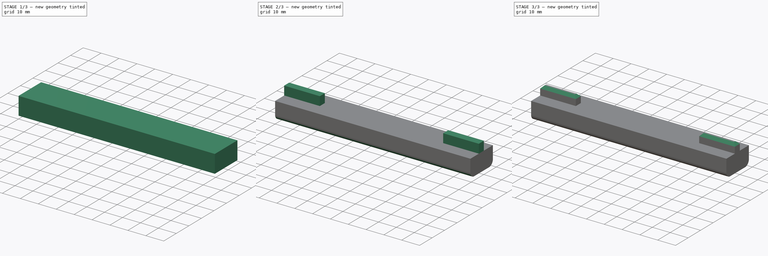
[diagram: build sequence overview — one tinted view per stage of 3, left to right]
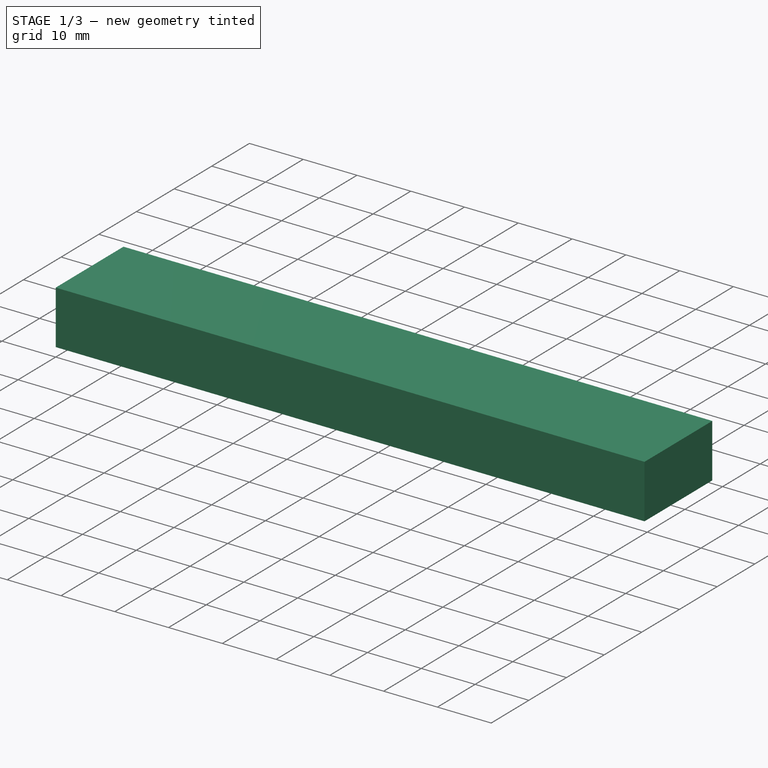
[diagram: stage 1 of 3 — iso view after this stage's code; geometry added in this stage tinted green]
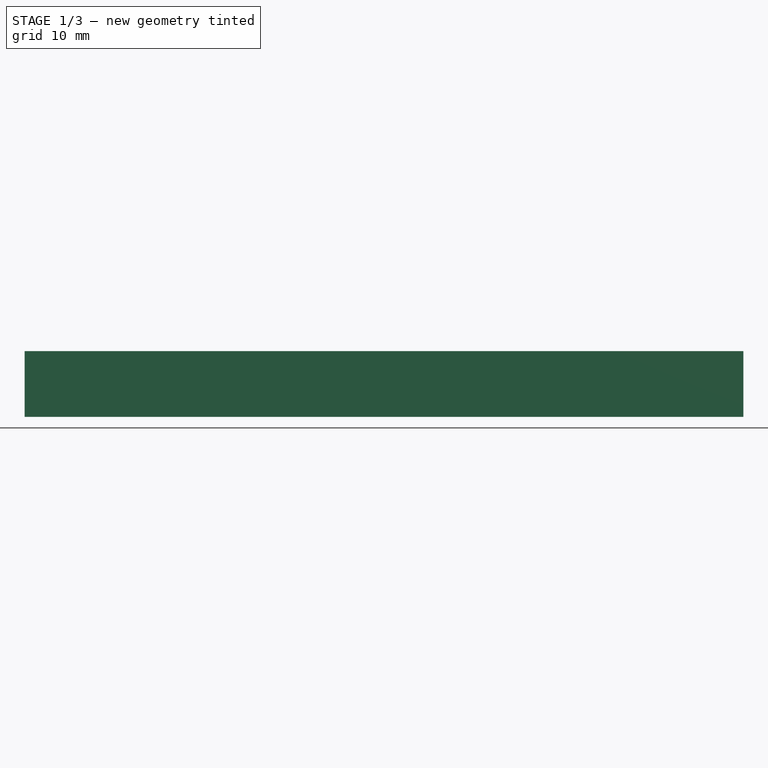
[diagram: stage 1 of 3 — front view after this stage's code; geometry added in this stage tinted green]
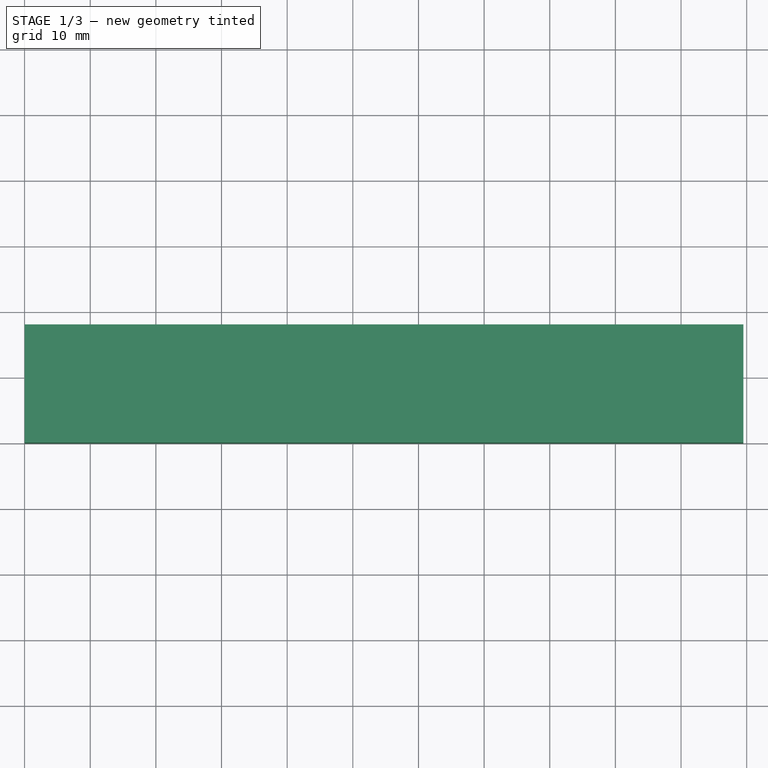
[diagram: stage 1 of 3 — top view after this stage's code; geometry added in this stage tinted green]
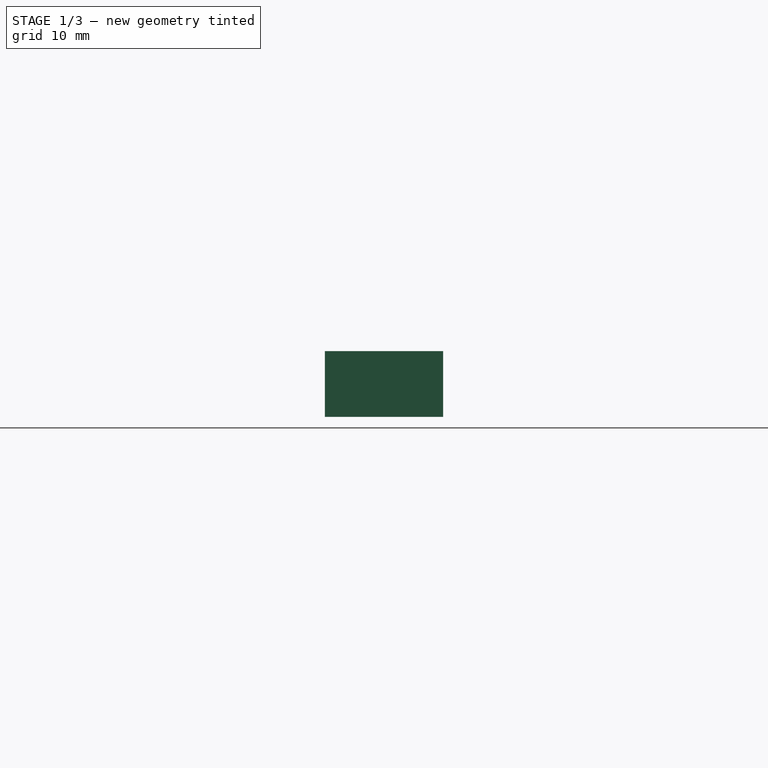
[diagram: stage 1 of 3 — right view after this stage's code; geometry added in this stage tinted green]
FCSTD DOCUMENT  (FreeCAD 0.16R5861 (Git))
Label: y_bed_spacer_from_back
License: All rights reserved
LicenseURL: http://en.wikipedia.org/wiki/All_rights_reserved
objects: PartDesign::Pad×3, Sketcher::SketchObject×2, PartDesign::Fillet×1, PartDesign::Chamfer×1, Part::Part2DObjectPython×1, Part::Cut×1
note: 12 computed .brp shape members not serialized (recipe doc carries the construction recipe); baked Part::Feature solids carry a one-line shape summary decoded from their .brp

FEATURE [Sketcher::SketchObject] Sketch
  sketch-geometry (4):
    g0: LineSegment StartX=0 StartY=0 StartZ=0 EndX=109.5 EndY=0 EndZ=0
    g1: LineSegment StartX=109.5 StartY=0 StartZ=0 EndX=109.5 EndY=18 EndZ=0
    g2: LineSegment StartX=109.5 StartY=18 StartZ=0 EndX=0 EndY=18 EndZ=0
    g3: LineSegment StartX=0 StartY=18 StartZ=0 EndX=0 EndY=0 EndZ=0
  constraints (11):
    c: Coincident(g0,g1)
    c: Coincident(g1,g2)
    c: Coincident(g2,g3)
    c: Coincident(g3,g0)
    c: Horizontal(g0)
    c: Horizontal(g2)
    c: Vertical(g1)
    c: Vertical(g3)
    c: Coincident(g0,g-1)
    c: DistanceY(g1,g0) = -18
    c: DistanceX(g1,g2) = -109.5
FEATURE [PartDesign::Pad] Pad
  Length = 10
  Length2 = 100
  Sketch = -> Sketch
  Type = 0
FEATURE [Part::Part2DObjectPython] ShapeString  # Draft 2D object (typed FeaturePython)
  FontFile = <userpath>/Desktop/Titillium-BoldUpright.otf
  Placement = pos=(8.82698,10.8831,0) rot=(1,0,0;3.14159rad)
  Size = 3
  String = Y_frame_offset_fixture_A
  Tracking = 0
FEATURE [PartDesign::Pad] Pad002
  Length = 2
  Length2 = 100
  Placement = pos=(8.82698,10.8831,0) rot=(1,0,0;3.14159rad)
  Reversed = true
  Sketch = -> ShapeString
  Type = 0
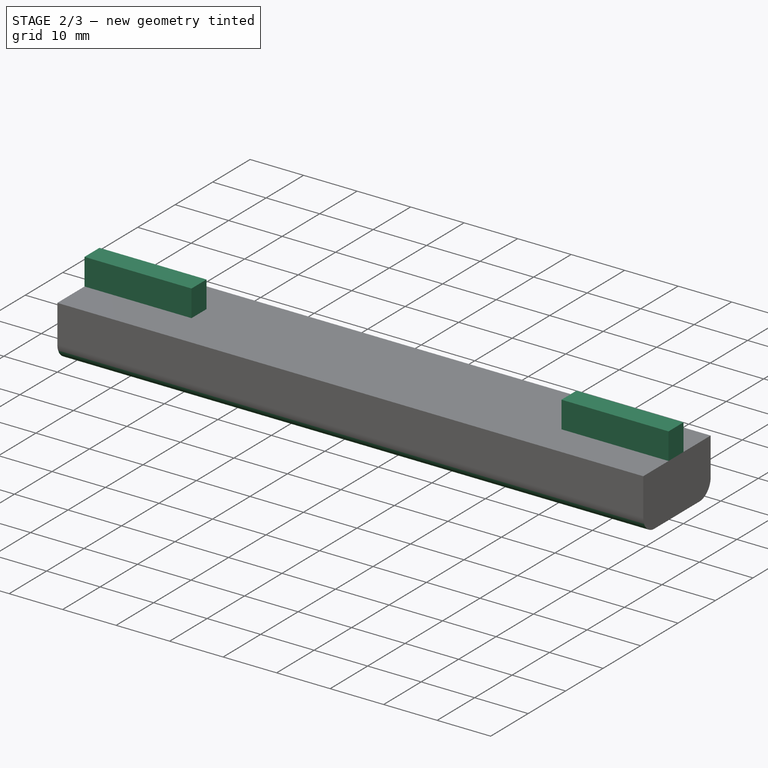
[diagram: stage 2 of 3 — iso view after this stage's code; geometry added in this stage tinted green]
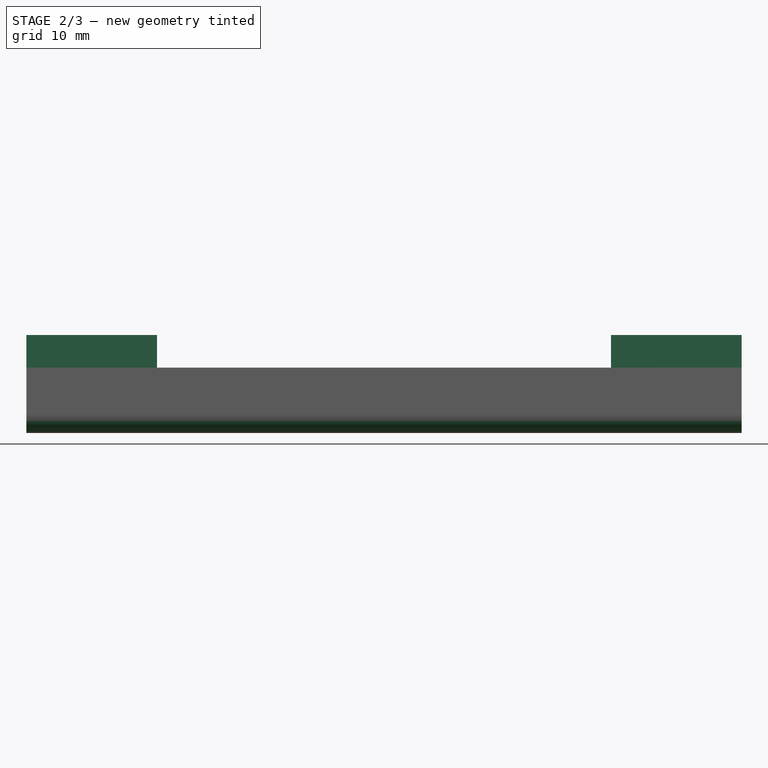
[diagram: stage 2 of 3 — front view after this stage's code; geometry added in this stage tinted green]
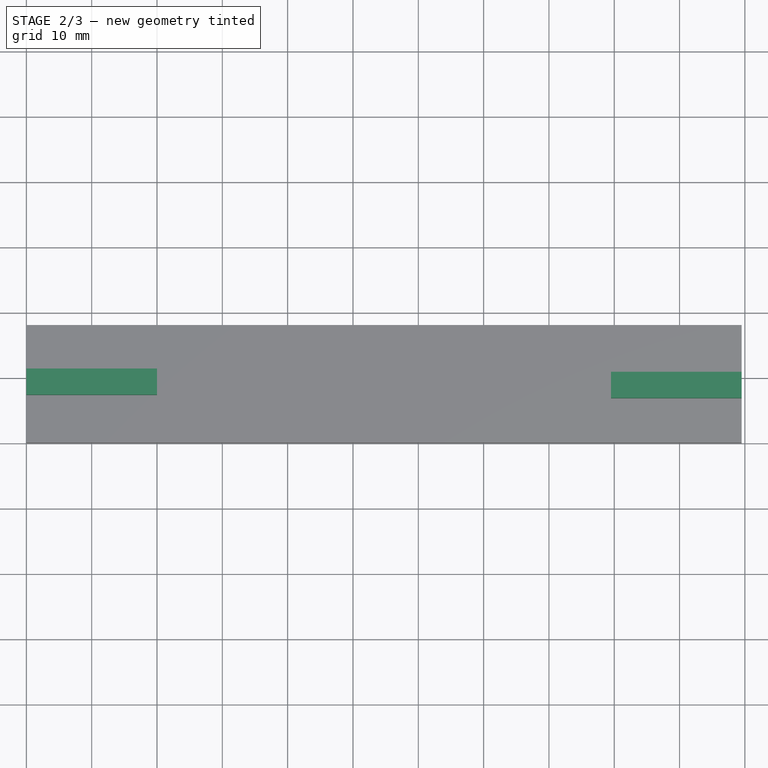
[diagram: stage 2 of 3 — top view after this stage's code; geometry added in this stage tinted green]
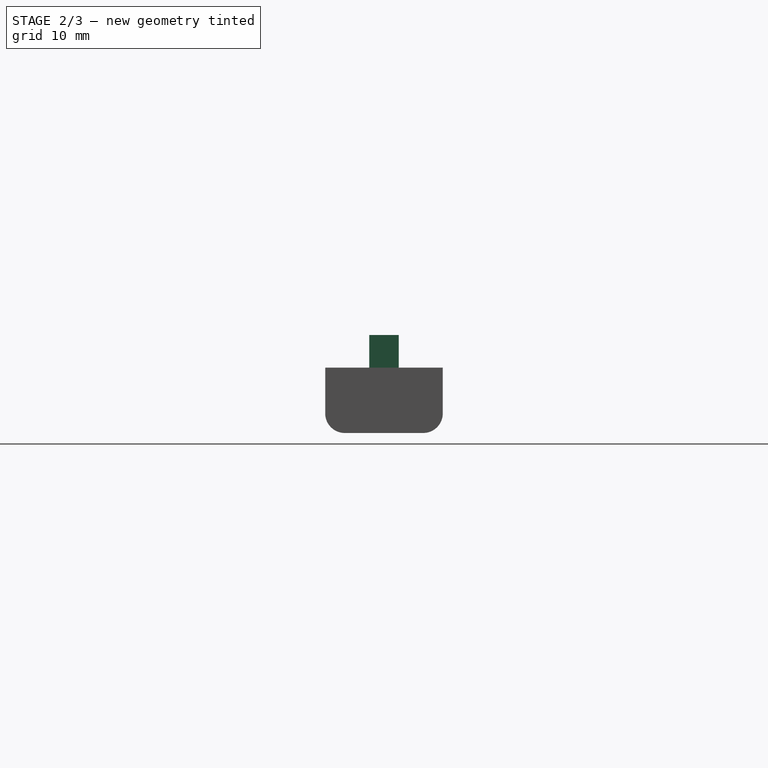
[diagram: stage 2 of 3 — right view after this stage's code; geometry added in this stage tinted green]
FEATURE [Sketcher::SketchObject] Sketch001
  ExternalGeometry = -> [Pad]
  Placement = pos=(0,0,10) rot=(0,0,1;0rad)
  Support = -> Pad [Face6]
  sketch-geometry (8):
    g0: LineSegment StartX=0 StartY=11.25 StartZ=0 EndX=20 EndY=11.25 EndZ=0
    g1: LineSegment StartX=20 StartY=11.25 StartZ=0 EndX=20 EndY=7.25 EndZ=0
    g2: LineSegment StartX=20 StartY=7.25 StartZ=0 EndX=0 EndY=7.25 EndZ=0
    g3: LineSegment StartX=0 StartY=7.25 StartZ=0 EndX=0 EndY=11.25 EndZ=0
    g4: LineSegment StartX=109.5 StartY=10.75 StartZ=0 EndX=89.5 EndY=10.75 EndZ=0
    g5: LineSegment StartX=89.5 StartY=10.75 StartZ=0 EndX=89.5 EndY=6.75 EndZ=0
    g6: LineSegment StartX=89.5 StartY=6.75 StartZ=0 EndX=109.5 EndY=6.75 EndZ=0
    g7: LineSegment StartX=109.5 StartY=6.75 StartZ=0 EndX=109.5 EndY=10.75 EndZ=0
  constraints (24):
    c: Coincident(g0,g1)
    c: Coincident(g1,g2)
    c: Coincident(g2,g3)
    c: Coincident(g3,g0)
    c: Horizontal(g0)
    c: Horizontal(g2)
    c: Vertical(g1)
    c: Vertical(g3)
    c: PointOnObject(g0,g-2)
    c: Coincident(g4,g5)
    c: Coincident(g5,g6)
    c: Coincident(g6,g7)
    c: Coincident(g7,g4)
    c: Horizontal(g4)
    c: Horizontal(g6)
    c: Vertical(g5)
    c: Vertical(g7)
    c: PointOnObject(g4,g-4)
    c: DistanceY(g4,g5) = -4
    c: DistanceY(g0,g1) = -4
    c: DistanceY(g0,g-3) = 6.75
    c: DistanceY(g-4,g6) = 6.75
    c: DistanceX(g0,g0) = -20
    c: DistanceX(g5,g6) = 20
FEATURE [PartDesign::Pad] Pad001
  Length = 5
  Length2 = 100
  Sketch = -> Sketch001
  Type = 0
FEATURE [PartDesign::Fillet] Fillet
  Base = -> Pad001 [Edge3,Edge15]
  Radius = 3
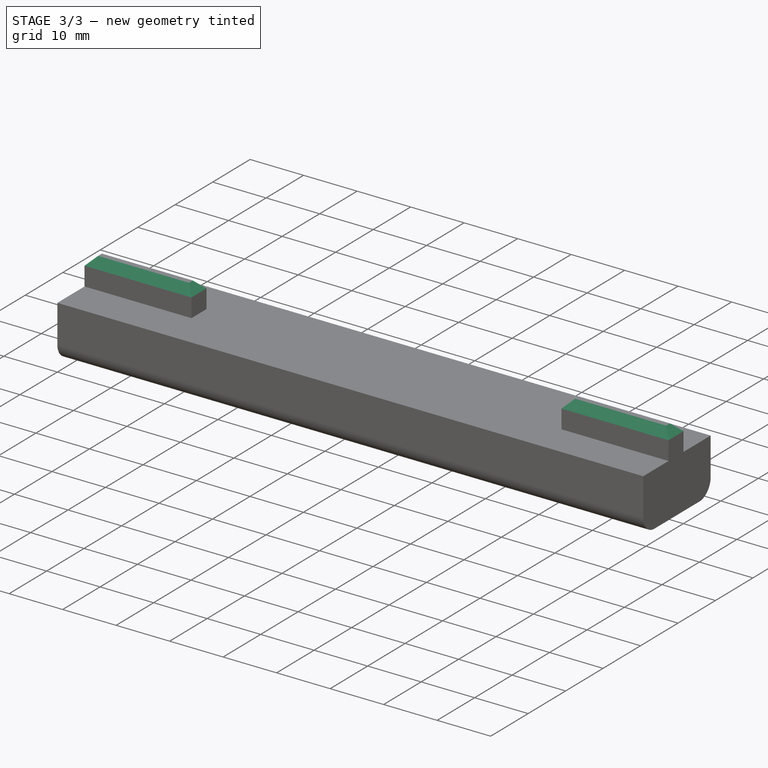
[diagram: stage 3 of 3 — iso view after this stage's code; geometry added in this stage tinted green]
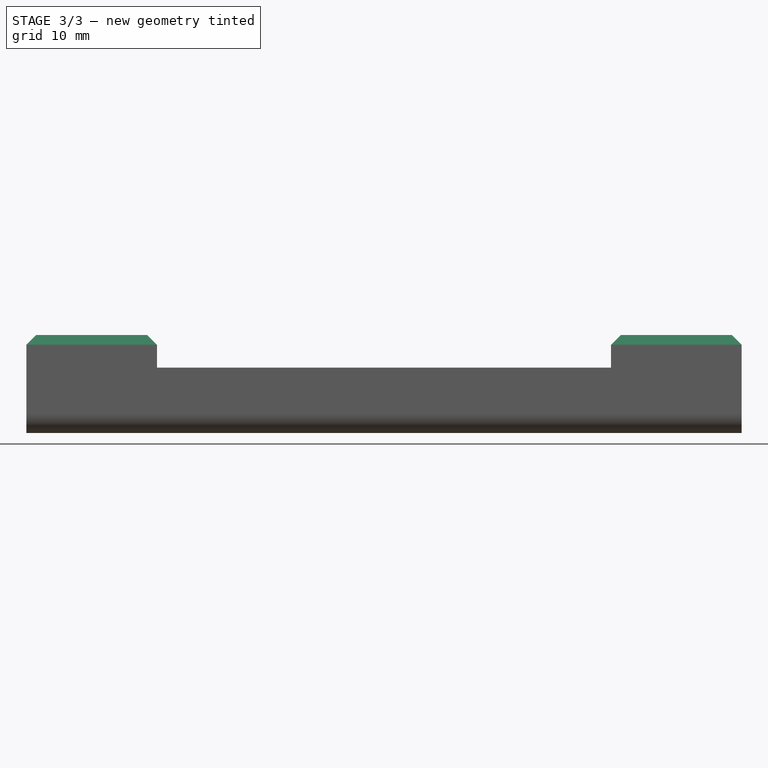
[diagram: stage 3 of 3 — front view after this stage's code; geometry added in this stage tinted green]
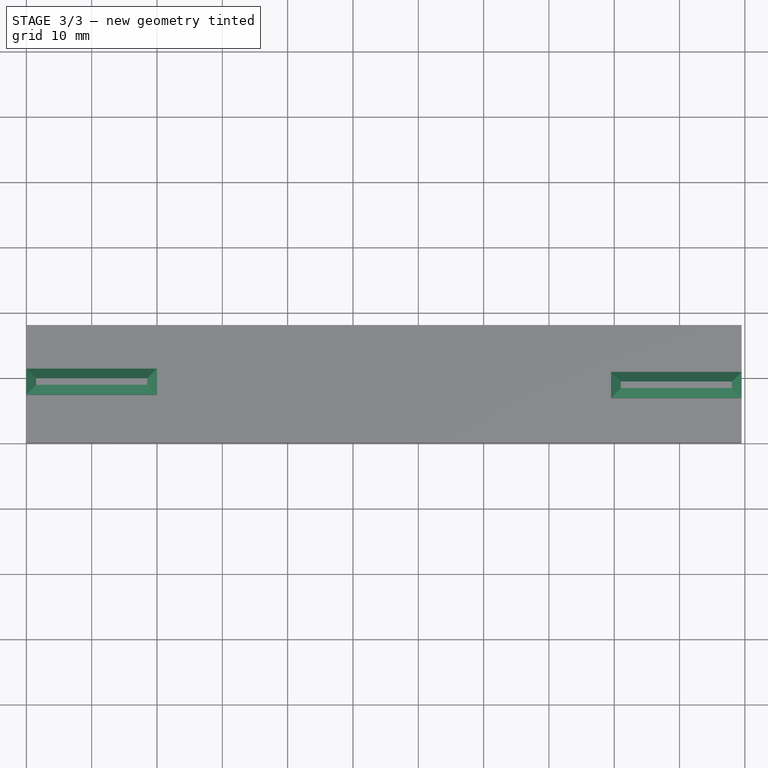
[diagram: stage 3 of 3 — top view after this stage's code; geometry added in this stage tinted green]
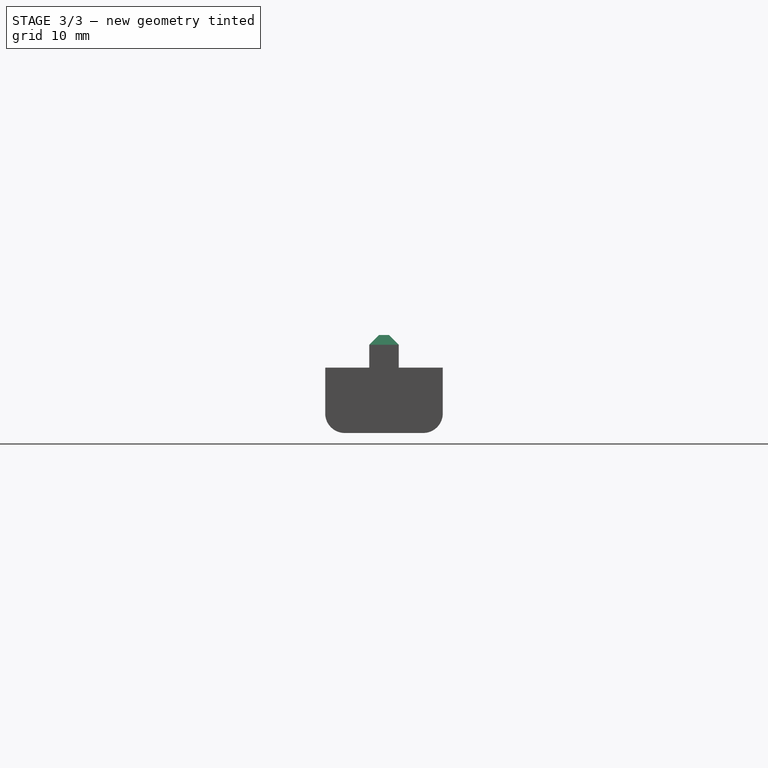
[diagram: stage 3 of 3 — right view after this stage's code; geometry added in this stage tinted green]
FEATURE [PartDesign::Chamfer] Chamfer
  Base = -> Fillet [Edge39,Edge43,Edge41,Edge30,Edge38,Edge36,Edge33,Edge44]
  Size = 1.5
FEATURE [Part::Cut] Cut
  Base = -> Chamfer
  Tool = -> Pad002
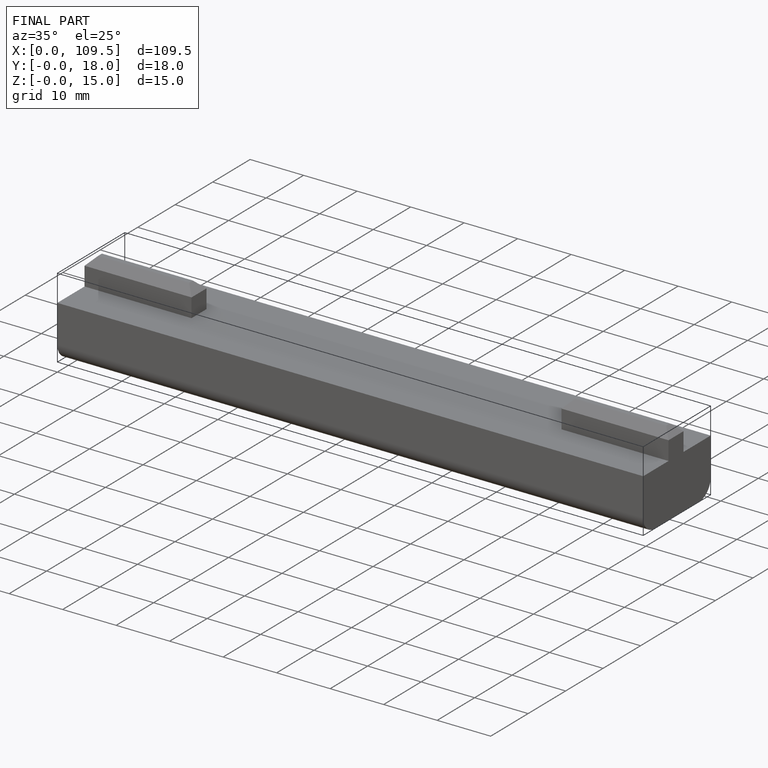
[diagram: finished part — iso view with bounding-box wireframe]
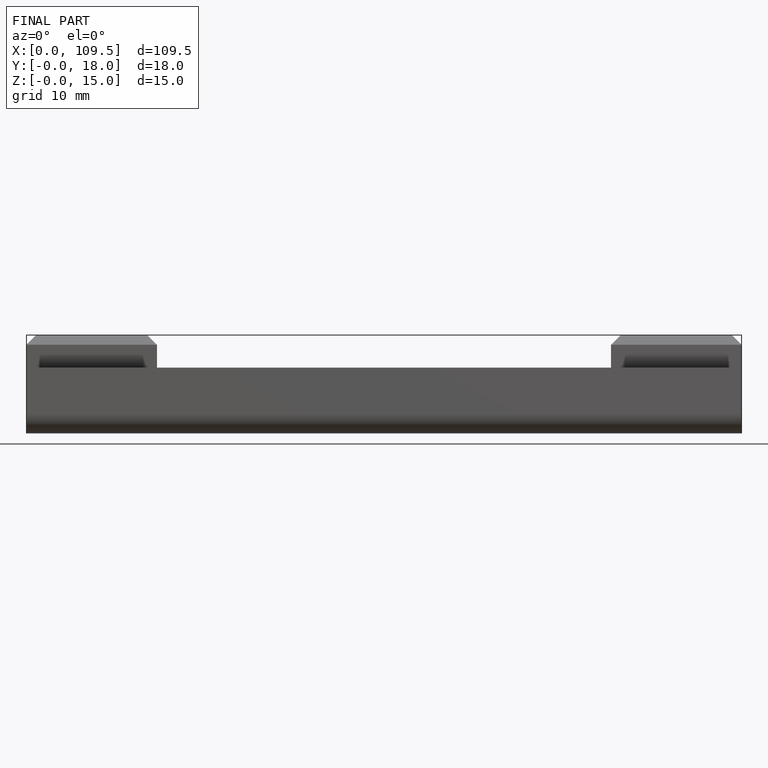
[diagram: finished part — front view with bounding-box wireframe]
